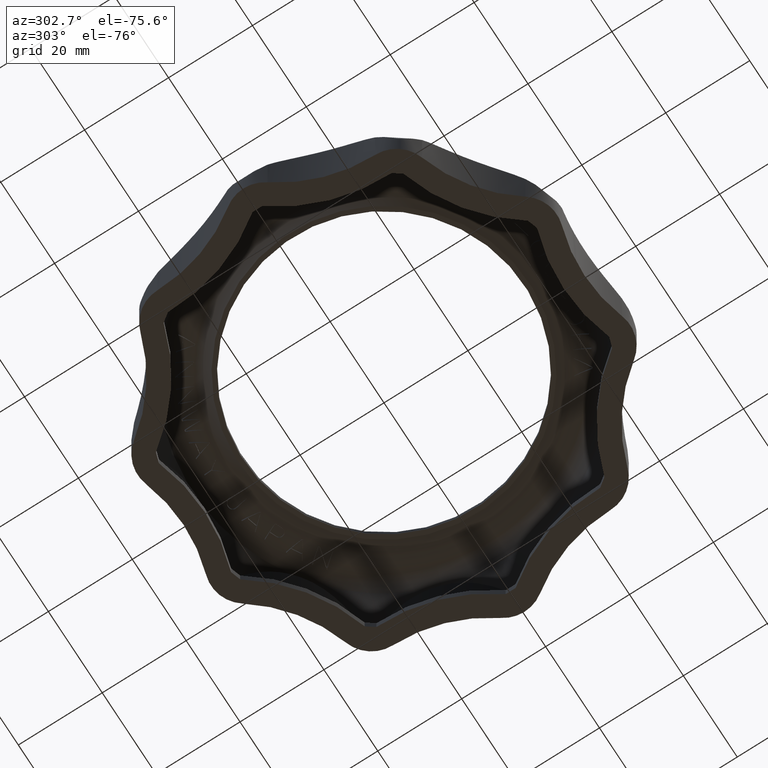
[diagram: clean part render]
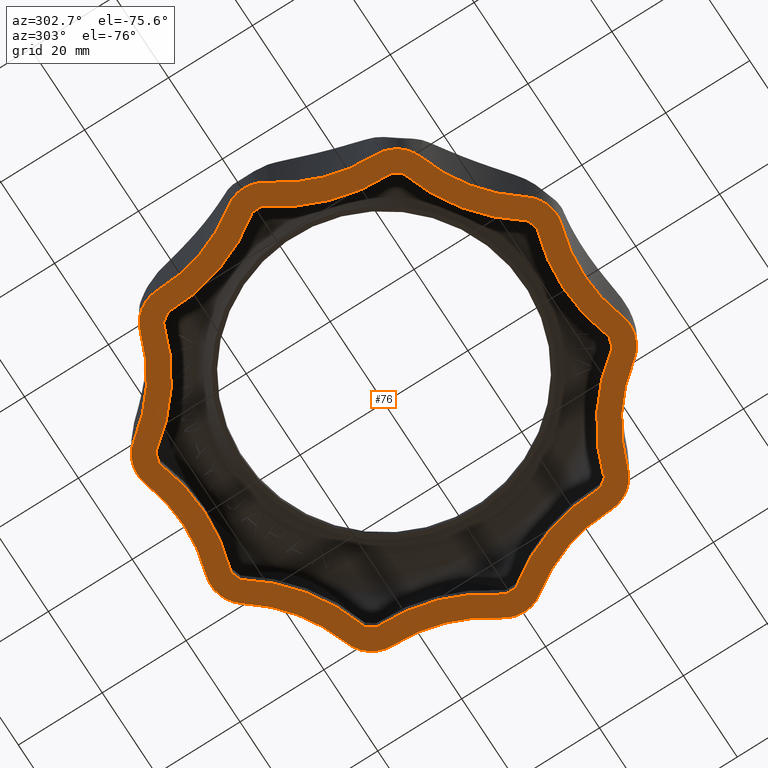
[diagram: same view with one face highlighted and labeled with its STEP entity id]
A machine part, auxiliary view. The second image highlights one B-rep face of the part: STEP entity #76.
In plain terms, the highlighted planar face has unit normal (-0, -0, 1).
Its self-contained STEP definition (entity closure, byte-faithful):
#76 = ADVANCED_FACE( '', ( #2260, #2261 ), #2262, .F. );
#2260 = FACE_BOUND( '', #6691, .T. );
#2261 = FACE_OUTER_BOUND( '', #6692, .T. );
#2262 = PLANE( '', #6693 );
#6691 = EDGE_LOOP( '', ( #11106, #11107, #11108, #11109, #11110, #11111, #11112, #11113, #11114, #11115, #11116, #11117, #11118, #11119, #11120, #11121, #11122, #11123, #11124, #11125 ) );
#6692 = EDGE_LOOP( '', ( #11126, #11127, #11128, #11129, #11130, #11131, #11132, #11133, #11134, #11135, #11136, #11137, #11138, #11139, #11140, #11141, #11142, #11143, #11144, #11145 ) );
#6693 = AXIS2_PLACEMENT_3D( '', #11146, #11147, #11148 );
#11106 = ORIENTED_EDGE( '', *, *, #30530, .T. );
#11107 = ORIENTED_EDGE( '', *, *, #30531, .T. );
#11108 = ORIENTED_EDGE( '', *, *, #30532, .T. );
#11109 = ORIENTED_EDGE( '', *, *, #30533, .T. );
#11110 = ORIENTED_EDGE( '', *, *, #30534, .T. );
#11111 = ORIENTED_EDGE( '', *, *, #30535, .T. );
#11112 = ORIENTED_EDGE( '', *, *, #30536, .T. );
#11113 = ORIENTED_EDGE( '', *, *, #30537, .T. );
#11114 = ORIENTED_EDGE( '', *, *, #30538, .T. );
#11115 = ORIENTED_EDGE( '', *, *, #30539, .T. );
#11116 = ORIENTED_EDGE( '', *, *, #30540, .T. );
#11117 = ORIENTED_EDGE( '', *, *, #30541, .T. );
#11118 = ORIENTED_EDGE( '', *, *, #30542, .T. );
#11119 = ORIENTED_EDGE( '', *, *, #30543, .T. );
#11120 = ORIENTED_EDGE( '', *, *, #30544, .T. );
#11121 = ORIENTED_EDGE( '', *, *, #30545, .T. );
#11122 = ORIENTED_EDGE( '', *, *, #30546, .T. );
#11123 = ORIENTED_EDGE( '', *, *, #30547, .T. );
#11124 = ORIENTED_EDGE( '', *, *, #30548, .T. );
#11125 = ORIENTED_EDGE( '', *, *, #30549, .T. );
#11126 = ORIENTED_EDGE( '', *, *, #30550, .F. );
#11127 = ORIENTED_EDGE( '', *, *, #30551, .F. );
#11128 = ORIENTED_EDGE( '', *, *, #30552, .F. );
#11129 = ORIENTED_EDGE( '', *, *, #30553, .F. );
#11130 = ORIENTED_EDGE( '', *, *, #30554, .F. );
#11131 = ORIENTED_EDGE( '', *, *, #30555, .F. );
#11132 = ORIENTED_EDGE( '', *, *, #30556, .F. );
#11133 = ORIENTED_EDGE( '', *, *, #30557, .F. );
#11134 = ORIENTED_EDGE( '', *, *, #30558, .F. );
#11135 = ORIENTED_EDGE( '', *, *, #30559, .F. );
#11136 = ORIENTED_EDGE( '', *, *, #30560, .F. );
#11137 = ORIENTED_EDGE( '', *, *, #30561, .F. );
#11138 = ORIENTED_EDGE( '', *, *, #30562, .F. );
#11139 = ORIENTED_EDGE( '', *, *, #30563, .F. );
#11140 = ORIENTED_EDGE( '', *, *, #30564, .F. );
#11141 = ORIENTED_EDGE( '', *, *, #30565, .F. );
#11142 = ORIENTED_EDGE( '', *, *, #30566, .F. );
#11143 = ORIENTED_EDGE( '', *, *, #30567, .F. );
#11144 = ORIENTED_EDGE( '', *, *, #30568, .F. );
#11145 = ORIENTED_EDGE( '', *, *, #30569, .F. );
#11146 = CARTESIAN_POINT( '', ( 0.000000000000000, 0.000000000000000, -0.000203932499397846 ) );
#11147 = DIRECTION( '', ( -3.93122838974283E-017, -7.71547013724938E-017, 1.00000000000000 ) );
#11148 = DIRECTION( '', ( 0.951056516295154, 0.309016994374947, 6.12303176911189E-017 ) );
#30530 = EDGE_CURVE( '', #36993, #36994, #36995, .T. );
#30531 = EDGE_CURVE( '', #36994, #36996, #36997, .T. );
#30532 = EDGE_CURVE( '', #36996, #36998, #36999, .T. );
#30533 = EDGE_CURVE( '', #36998, #37000, #37001, .T. );
#30534 = EDGE_CURVE( '', #37000, #37002, #37003, .T. );
#30535 = EDGE_CURVE( '', #37002, #37004, #37005, .T. );
#30536 = EDGE_CURVE( '', #37004, #37006, #37007, .T. );
#30537 = EDGE_CURVE( '', #37006, #37008, #37009, .T. );
#30538 = EDGE_CURVE( '', #37008, #37010, #37011, .T. );
#30539 = EDGE_CURVE( '', #37010, #37012, #37013, .T. );
#30540 = EDGE_CURVE( '', #37012, #37014, #37015, .T. );
#30541 = EDGE_CURVE( '', #37014, #37016, #37017, .T. );
#30542 = EDGE_CURVE( '', #37016, #37018, #37019, .T. );
#30543 = EDGE_CURVE( '', #37018, #37020, #37021, .T. );
#30544 = EDGE_CURVE( '', #37020, #37022, #37023, .T. );
#30545 = EDGE_CURVE( '', #37022, #37024, #37025, .T. );
#30546 = EDGE_CURVE( '', #37024, #37026, #37027, .T. );
#30547 = EDGE_CURVE( '', #37026, #37028, #37029, .T. );
#30548 = EDGE_CURVE( '', #37028, #37030, #37031, .T. );
#30549 = EDGE_CURVE( '', #37030, #36993, #37032, .T. );
#30550 = EDGE_CURVE( '', #37033, #37034, #37035, .T. );
#30551 = EDGE_CURVE( '', #37036, #37033, #37037, .F. );
#30552 = EDGE_CURVE( '', #37038, #37036, #37039, .T. );
#30553 = EDGE_CURVE( '', #37040, #37038, #37041, .F. );
#30554 = EDGE_CURVE( '', #37042, #37040, #37043, .T. );
#30555 = EDGE_CURVE( '', #37044, #37042, #37045, .F. );
#30556 = EDGE_CURVE( '', #37046, #37044, #37047, .T. );
#30557 = EDGE_CURVE( '', #37048, #37046, #37049, .F. );
#30558 = EDGE_CURVE( '', #37050, #37048, #37051, .T. );
#30559 = EDGE_CURVE( '', #37052, #37050, #37053, .F. );
#30560 = EDGE_CURVE( '', #37054, #37052, #37055, .T. );
#30561 = EDGE_CURVE( '', #37056, #37054, #37057, .F. );
#30562 = EDGE_CURVE( '', #37058, #37056, #37059, .T. );
#30563 = EDGE_CURVE( '', #37060, #37058, #37061, .F. );
#30564 = EDGE_CURVE( '', #37062, #37060, #37063, .T. );
#30565 = EDGE_CURVE( '', #37064, #37062, #37065, .F. );
#30566 = EDGE_CURVE( '', #37066, #37064, #37067, .T. );
#30567 = EDGE_CURVE( '', #37068, #37066, #37069, .F. );
#30568 = EDGE_CURVE( '', #37070, #37068, #37071, .T. );
#30569 = EDGE_CURVE( '', #37034, #37070, #37072, .F. );
#36993 = VERTEX_POINT( '', #48431 );
#36994 = VERTEX_POINT( '', #48432 );
#36995 = CIRCLE( '', #48433, 47.0000000000000 );
#36996 = VERTEX_POINT( '', #48434 );
#36997 = CIRCLE( '', #48435, 40.5000000000000 );
#36998 = VERTEX_POINT( '', #48436 );
#36999 = CIRCLE( '', #48437, 47.0000000000000 );
#37000 = VERTEX_POINT( '', #48438 );
#37001 = CIRCLE( '', #48439, 40.5000000000000 );
#37002 = VERTEX_POINT( '', #48440 );
#37003 = CIRCLE( '', #48441, 47.0000000000000 );
#37004 = VERTEX_POINT( '', #48442 );
#37005 = CIRCLE( '', #48443, 40.5000000000000 );
#37006 = VERTEX_POINT( '', #48444 );
#37007 = CIRCLE( '', #48445, 47.0000000000000 );
#37008 = VERTEX_POINT( '', #48446 );
#37009 = CIRCLE( '', #48447, 40.5000000000000 );
#37010 = VERTEX_POINT( '', #48448 );
#37011 = CIRCLE( '', #48449, 47.0000000000000 );
#37012 = VERTEX_POINT( '', #48450 );
#37013 = CIRCLE( '', #48451, 40.5000000000000 );
#37014 = VERTEX_POINT( '', #48452 );
#37015 = CIRCLE( '', #48453, 47.0000000000000 );
#37016 = VERTEX_POINT( '', #48454 );
#37017 = CIRCLE( '', #48455, 40.5000000000000 );
#37018 = VERTEX_POINT( '', #48456 );
#37019 = CIRCLE( '', #48457, 47.0000000000000 );
#37020 = VERTEX_POINT( '', #48458 );
#37021 = CIRCLE( '', #48459, 40.5000000000000 );
#37022 = VERTEX_POINT( '', #48460 );
#37023 = CIRCLE( '', #48461, 47.0000000000000 );
#37024 = VERTEX_POINT( '', #48462 );
#37025 = CIRCLE( '', #48463, 40.5000000000000 );
#37026 = VERTEX_POINT( '', #48464 );
#37027 = CIRCLE( '', #48465, 47.0000000000000 );
#37028 = VERTEX_POINT( '', #48466 );
#37029 = CIRCLE( '', #48467, 40.5000000000000 );
#37030 = VERTEX_POINT( '', #48468 );
#37031 = CIRCLE( '', #48469, 47.0000000000000 );
#37032 = CIRCLE( '', #48470, 40.5000000000000 );
#37033 = VERTEX_POINT( '', #48471 );
#37034 = VERTEX_POINT( '', #48472 );
#37035 = CIRCLE( '', #48473, 8.00000000000000 );
#37036 = VERTEX_POINT( '', #48474 );
#37037 = CIRCLE( '', #48475, 35.5000000000000 );
#37038 = VERTEX_POINT( '', #48476 );
#37039 = CIRCLE( '', #48477, 8.00000000000000 );
#37040 = VERTEX_POINT( '', #48478 );
#37041 = CIRCLE( '', #48479, 35.5000000000000 );
#37042 = VERTEX_POINT( '', #48480 );
#37043 = CIRCLE( '', #48481, 8.00000000000000 );
#37044 = VERTEX_POINT( '', #48482 );
#37045 = CIRCLE( '', #48483, 35.5000000000000 );
#37046 = VERTEX_POINT( '', #48484 );
#37047 = CIRCLE( '', #48485, 8.00000000000000 );
#37048 = VERTEX_POINT( '', #48486 );
#37049 = CIRCLE( '', #48487, 35.5000000000000 );
#37050 = VERTEX_POINT( '', #48488 );
#37051 = CIRCLE( '', #48489, 8.00000000000000 );
#37052 = VERTEX_POINT( '', #48490 );
#37053 = CIRCLE( '', #48491, 35.5000000000000 );
#37054 = VERTEX_POINT( '', #48492 );
#37055 = CIRCLE( '', #48493, 8.00000000000000 );
#37056 = VERTEX_POINT( '', #48494 );
#37057 = CIRCLE( '', #48495, 35.5000000000000 );
#37058 = VERTEX_POINT( '', #48496 );
#37059 = CIRCLE( '', #48497, 8.00000000000000 );
#37060 = VERTEX_POINT( '', #48498 );
#37061 = CIRCLE( '', #48499, 35.5000000000000 );
#37062 = VERTEX_POINT( '', #48500 );
#37063 = CIRCLE( '', #48501, 8.00000000000000 );
#37064 = VERTEX_POINT( '', #48502 );
#37065 = CIRCLE( '', #48503, 35.5000000000000 );
#37066 = VERTEX_POINT( '', #48504 );
#37067 = CIRCLE( '', #48505, 8.00000000000000 );
#37068 = VERTEX_POINT( '', #48506 );
#37069 = CIRCLE( '', #48507, 35.5000000000000 );
#37070 = VERTEX_POINT( '', #48508 );
#37071 = CIRCLE( '', #48509, 8.00000000000000 );
#37072 = CIRCLE( '', #48510, 35.5000000000000 );
#48431 = CARTESIAN_POINT( '', ( 46.9852674486370, -1.17670845158146, -0.000203932499397846 ) );
#48432 = CARTESIAN_POINT( '', ( 46.9852671397266, 1.17672078612675, -0.000203932499397846 ) );
#48433 = AXIS2_PLACEMENT_3D( '', #75305, #75306, #75307 );
#48434 = CARTESIAN_POINT( '', ( 38.7035329612347, 26.6652683526455, -0.000203932499397846 ) );
#48435 = AXIS2_PLACEMENT_3D( '', #75308, #75309, #75310 );
#48436 = CARTESIAN_POINT( '', ( 37.3202222013123, 28.5692319610567, -0.000203932499397846 ) );
#48437 = AXIS2_PLACEMENT_3D( '', #75311, #75312, #75313 );
#48438 = CARTESIAN_POINT( '', ( 15.6383666523773, 44.3220203560918, -0.000203932499397846 ) );
#48439 = AXIS2_PLACEMENT_3D( '', #75314, #75315, #75316 );
#48440 = CARTESIAN_POINT( '', ( 13.4001249328853, 45.0492691592558, -0.000203932499397846 ) );
#48441 = AXIS2_PLACEMENT_3D( '', #75317, #75318, #75319 );
#48442 = CARTESIAN_POINT( '', ( -13.4001216632463, 45.0492701318257, -0.000203932499397846 ) );
#48443 = AXIS2_PLACEMENT_3D( '', #75320, #75321, #75322 );
#48444 = CARTESIAN_POINT( '', ( -15.6383648462239, 44.3220209933662, -0.000203932499397846 ) );
#48445 = AXIS2_PLACEMENT_3D( '', #75323, #75324, #75325 );
#48446 = CARTESIAN_POINT( '', ( -37.3202204259943, 28.5692342801691, -0.000203932499397846 ) );
#48447 = AXIS2_PLACEMENT_3D( '', #75326, #75327, #75328 );
#48448 = CARTESIAN_POINT( '', ( -38.7035322612565, 26.6652693686354, -0.000203932499397846 ) );
#48449 = AXIS2_PLACEMENT_3D( '', #75329, #75330, #75331 );
#48450 = CARTESIAN_POINT( '', ( -46.9852670972062, 1.17672248393640, -0.000203932499397846 ) );
#48451 = AXIS2_PLACEMENT_3D( '', #75332, #75333, #75334 );
#48452 = CARTESIAN_POINT( '', ( -46.9852673537911, -1.17671223872732, -0.000203932499397846 ) );
#48453 = AXIS2_PLACEMENT_3D( '', #75335, #75336, #75337 );
#48454 = CARTESIAN_POINT( '', ( -38.7035396387853, -26.6652586604551, -0.000203932499397846 ) );
#48455 = AXIS2_PLACEMENT_3D( '', #75338, #75339, #75340 );
#48456 = CARTESIAN_POINT( '', ( -37.3202243678309, -28.5692291309158, -0.000203932499397846 ) );
#48457 = AXIS2_PLACEMENT_3D( '', #75341, #75342, #75343 );
#48458 = CARTESIAN_POINT( '', ( -15.6383715874125, -44.3220186148376, -0.000203932499397846 ) );
#48459 = AXIS2_PLACEMENT_3D( '', #75344, #75345, #75346 );
#48460 = CARTESIAN_POINT( '', ( -13.4001214372271, -45.0492701990561, -0.000203932499397846 ) );
#48461 = AXIS2_PLACEMENT_3D( '', #75347, #75348, #75349 );
#48462 = CARTESIAN_POINT( '', ( 13.4001250107380, -45.0492691360980, -0.000203932499397846 ) );
#48463 = AXIS2_PLACEMENT_3D( '', #75350, #75351, #75352 );
#48464 = CARTESIAN_POINT( '', ( 15.6383737512212, -44.3220178513696, -0.000203932499397846 ) );
#48465 = AXIS2_PLACEMENT_3D( '', #75353, #75354, #75355 );
#48466 = CARTESIAN_POINT( '', ( 37.3202270526830, -28.5692256236705, -0.000203932499397846 ) );
#48467 = AXIS2_PLACEMENT_3D( '', #75356, #75357, #75358 );
#48468 = CARTESIAN_POINT( '', ( 38.7035390363243, -26.6652595349028, -0.000203932499397846 ) );
#48469 = AXIS2_PLACEMENT_3D( '', #75359, #75360, #75361 );
#48470 = AXIS2_PLACEMENT_3D( '', #75362, #75363, #75364 );
#48471 = CARTESIAN_POINT( '', ( 50.5695598287548, -4.73218434635843, -0.000203932499397846 ) );
#48472 = CARTESIAN_POINT( '', ( 50.5695587571213, 4.73219743692573, -0.000203932499397846 ) );
#48473 = AXIS2_PLACEMENT_3D( '', #75365, #75366, #75367 );
#48474 = CARTESIAN_POINT( '', ( 43.6931485739447, -25.8956129149273, -0.000203932499397846 ) );
#48475 = AXIS2_PLACEMENT_3D( '', #75368, #75369, #75370 );
#48476 = CARTESIAN_POINT( '', ( 38.1301250738148, -33.5524599562359, -0.000203932499397846 ) );
#48477 = AXIS2_PLACEMENT_3D( '', #75371, #75372, #75373 );
#48478 = CARTESIAN_POINT( '', ( 20.1274387297605, -46.6321808029093, -0.000203932499397846 ) );
#48479 = AXIS2_PLACEMENT_3D( '', #75374, #75375, #75376 );
#48480 = CARTESIAN_POINT( '', ( 11.1262755807915, -49.5568367725046, -0.000203932499397846 ) );
#48481 = AXIS2_PLACEMENT_3D( '', #75377, #75378, #75379 );
#48482 = CARTESIAN_POINT( '', ( -11.1262723263366, -49.5568378784047, -0.000203932499397846 ) );
#48483 = AXIS2_PLACEMENT_3D( '', #75380, #75381, #75382 );
#48484 = CARTESIAN_POINT( '', ( -20.1274358767528, -46.6321826495560, -0.000203932499397846 ) );
#48485 = AXIS2_PLACEMENT_3D( '', #75383, #75384, #75385 );
#48486 = CARTESIAN_POINT( '', ( -38.1301248192497, -33.5524626511502, -0.000203932499397846 ) );
#48487 = AXIS2_PLACEMENT_3D( '', #75386, #75387, #75388 );
#48488 = CARTESIAN_POINT( '', ( -43.6931492589097, -25.8956153771350, -0.000203932499397846 ) );
#48489 = AXIS2_PLACEMENT_3D( '', #75389, #75390, #75391 );
#48490 = CARTESIAN_POINT( '', ( -50.5695615433324, -4.73218570728743, -0.000203932499397846 ) );
#48491 = AXIS2_PLACEMENT_3D( '', #75392, #75393, #75394 );
#48492 = CARTESIAN_POINT( '', ( -50.5695602230994, 4.73219704653359, -0.000203932499397846 ) );
#48493 = AXIS2_PLACEMENT_3D( '', #75395, #75396, #75397 );
#48494 = CARTESIAN_POINT( '', ( -43.6931420301222, 25.8956238961132, -0.000203932499397846 ) );
#48495 = AXIS2_PLACEMENT_3D( '', #75398, #75399, #75400 );
#48496 = CARTESIAN_POINT( '', ( -38.1301170915652, 33.5524688909540, -0.000203932499397846 ) );
#48497 = AXIS2_PLACEMENT_3D( '', #75401, #75402, #75403 );
#48498 = CARTESIAN_POINT( '', ( -20.1274308901839, 46.6321827641516, -0.000203932499397846 ) );
#48499 = AXIS2_PLACEMENT_3D( '', #75404, #75405, #75406 );
#48500 = CARTESIAN_POINT( '', ( -11.1262692105455, 49.5568367093532, -0.000203932499397846 ) );
#48501 = AXIS2_PLACEMENT_3D( '', #75407, #75408, #75409 );
#48502 = CARTESIAN_POINT( '', ( 11.1262721183506, 49.5568356744203, -0.000203932499397846 ) );
#48503 = AXIS2_PLACEMENT_3D( '', #75410, #75411, #75412 );
#48504 = CARTESIAN_POINT( '', ( 20.1274332901444, 46.6321812196890, -0.000203932499397846 ) );
#48505 = AXIS2_PLACEMENT_3D( '', #75413, #75414, #75415 );
#48506 = CARTESIAN_POINT( '', ( 38.1301182403996, 33.5524668026390, -0.000203932499397846 ) );
#48507 = AXIS2_PLACEMENT_3D( '', #75416, #75417, #75418 );
#48508 = CARTESIAN_POINT( '', ( 43.6931426977184, 25.8956218548304, -0.000203932499397846 ) );
#48509 = AXIS2_PLACEMENT_3D( '', #75419, #75420, #75421 );
#48510 = AXIS2_PLACEMENT_3D( '', #75422, #75423, #75424 );
#75305 = CARTESIAN_POINT( '', ( 0.000000000000000, 0.000000000000000, -0.000203932499397846 ) );
#75306 = DIRECTION( '', ( 0.000000000000000, 0.000000000000000, 1.00000000000000 ) );
#75307 = DIRECTION( '', ( 0.999686541064117, -0.0250363658557255, 0.000000000000000 ) );
#75308 = CARTESIAN_POINT( '', ( 79.1927623800716, 25.7312977595377, -0.000203932499397846 ) );
#75309 = DIRECTION( '', ( 0.000000000000000, 0.000000000000000, -1.00000000000000 ) );
#75310 = DIRECTION( '', ( -0.999734059822708, 0.0230609980357846, 0.000000000000000 ) );
#75311 = CARTESIAN_POINT( '', ( 0.000000000000000, 0.000000000000000, -0.000203932499397846 ) );
#75312 = DIRECTION( '', ( 0.000000000000000, 0.000000000000000, 1.00000000000000 ) );
#75313 = DIRECTION( '', ( 0.823479427193890, 0.567346131553237, 0.000000000000000 ) );
#75314 = CARTESIAN_POINT( '', ( 48.9438168933984, 67.3653921632483, -0.000203932499397846 ) );
#75315 = DIRECTION( '', ( 0.000000000000000, 0.000000000000000, -1.00000000000000 ) );
#75316 = DIRECTION( '', ( -0.786519374485944, -0.617565602635250, 0.000000000000000 ) );
#75317 = CARTESIAN_POINT( '', ( 0.000000000000000, 0.000000000000000, -0.000203932499397846 ) );
#75318 = DIRECTION( '', ( 0.000000000000000, 0.000000000000000, 1.00000000000000 ) );
#75319 = DIRECTION( '', ( 0.332731227881162, 0.943021701761256, 0.000000000000000 ) );
#75320 = CARTESIAN_POINT( '', ( 3.02176880739857E-006, 83.2682007608484, -0.000203932499397846 ) );
#75321 = DIRECTION( '', ( 0.000000000000000, 0.000000000000000, -1.00000000000000 ) );
#75322 = DIRECTION( '', ( -0.330867275027366, -0.943677299883793, 0.000000000000000 ) );
#75323 = CARTESIAN_POINT( '', ( 0.000000000000000, 0.000000000000000, -0.000203932499397846 ) );
#75324 = DIRECTION( '', ( 0.000000000000000, 0.000000000000000, 1.00000000000000 ) );
#75325 = DIRECTION( '', ( -0.285108947327437, 0.958495116395405, 0.000000000000000 ) );
#75326 = CARTESIAN_POINT( '', ( -48.9438136112642, 67.3653949338131, -0.000203932499397846 ) );
#75327 = DIRECTION( '', ( 0.000000000000000, 0.000000000000000, -1.00000000000000 ) );
#75328 = DIRECTION( '', ( 0.287002301258113, -0.957929892566542, 0.000000000000000 ) );
#75329 = CARTESIAN_POINT( '', ( 0.000000000000000, 0.000000000000000, -0.000203932499397846 ) );
#75330 = DIRECTION( '', ( 0.000000000000000, 0.000000000000000, 1.00000000000000 ) );
#75331 = DIRECTION( '', ( -0.794047235011468, 0.607856059088534, 0.000000000000000 ) );
#75332 = CARTESIAN_POINT( '', ( -79.1927617146672, 25.7313002743651, -0.000203932499397846 ) );
#75333 = DIRECTION( '', ( 0.000000000000000, 0.000000000000000, -1.00000000000000 ) );
#75334 = DIRECTION( '', ( 0.795246781559890, -0.606285870211930, 0.000000000000000 ) );
#75335 = CARTESIAN_POINT( '', ( 0.000000000000000, 0.000000000000000, -0.000203932499397846 ) );
#75336 = DIRECTION( '', ( 0.000000000000000, 0.000000000000000, 1.00000000000000 ) );
#75337 = DIRECTION( '', ( -0.999686534072606, 0.0250366450208709, 0.000000000000000 ) );
#75338 = CARTESIAN_POINT( '', ( -79.1927688934341, -25.7312809495373, -0.000203932499397846 ) );
#75339 = DIRECTION( '', ( 0.000000000000000, 0.000000000000000, -1.00000000000000 ) );
#75340 = DIRECTION( '', ( 0.999734054590308, -0.0230612248682475, 0.000000000000000 ) );
#75341 = CARTESIAN_POINT( '', ( 0.000000000000000, 0.000000000000000, -0.000203932499397846 ) );
#75342 = DIRECTION( '', ( 0.000000000000000, 0.000000000000000, 1.00000000000000 ) );
#75343 = DIRECTION( '', ( -0.823479555920623, -0.567345944711667, 0.000000000000000 ) );
#75344 = CARTESIAN_POINT( '', ( -48.9438235027830, -67.3653880019941, -0.000203932499397846 ) );
#75345 = DIRECTION( '', ( 0.000000000000000, 0.000000000000000, -1.00000000000000 ) );
#75346 = DIRECTION( '', ( 0.786519471492912, 0.617565479089068, 0.000000000000000 ) );
#75347 = CARTESIAN_POINT( '', ( 0.000000000000000, 0.000000000000000, -0.000203932499397846 ) );
#75348 = DIRECTION( '', ( 0.000000000000000, 0.000000000000000, 1.00000000000000 ) );
#75349 = DIRECTION( '', ( -0.332731310175329, -0.943021672724975, 0.000000000000000 ) );
#75350 = CARTESIAN_POINT( '', ( 3.30260424563633E-006, -83.2682008088594, -0.000203932499397846 ) );
#75351 = DIRECTION( '', ( 0.000000000000000, 0.000000000000000, -1.00000000000000 ) );
#75352 = DIRECTION( '', ( 0.330867192675986, 0.943677328757405, 0.000000000000000 ) );
#75353 = CARTESIAN_POINT( '', ( 0.000000000000000, 0.000000000000000, -0.000203932499397846 ) );
#75354 = DIRECTION( '', ( 0.000000000000000, 0.000000000000000, 1.00000000000000 ) );
#75355 = DIRECTION( '', ( 0.285109030971913, -0.958495091514952, 0.000000000000000 ) );
#75356 = CARTESIAN_POINT( '', ( 48.9438279251230, -67.3653839741851, -0.000203932499397846 ) );
#75357 = DIRECTION( '', ( 0.000000000000000, 0.000000000000000, -1.00000000000000 ) );
#75358 = DIRECTION( '', ( -0.287002501886473, 0.957929832456900, 0.000000000000000 ) );
#75359 = CARTESIAN_POINT( '', ( 0.000000000000000, 0.000000000000000, -0.000203932499397846 ) );
#75360 = DIRECTION( '', ( 0.000000000000000, 0.000000000000000, 1.00000000000000 ) );
#75361 = DIRECTION( '', ( 0.794047372929612, -0.607855878924915, 0.000000000000000 ) );
#75362 = CARTESIAN_POINT( '', ( 79.1927682070789, -25.7312781870703, -0.000203932499397846 ) );
#75363 = DIRECTION( '', ( 0.000000000000000, 0.000000000000000, -1.00000000000000 ) );
#75364 = DIRECTION( '', ( -0.795246950866813, 0.606285648137110, 0.000000000000000 ) );
#75365 = CARTESIAN_POINT( '', ( 44.1192593491322, 5.81492903828362E-006, -0.000203932499397846 ) );
#75366 = DIRECTION( '', ( -3.93122838974283E-017, -7.71547013724938E-017, 1.00000000000000 ) );
#75367 = DIRECTION( '', ( 0.951056516295154, 0.309016994374947, 6.12303176911189E-017 ) );
#75368 = CARTESIAN_POINT( '', ( 79.1927682070789, -25.7312781870703, -0.000203932499397846 ) );
#75369 = DIRECTION( '', ( -3.93122838974283E-017, -7.71547013724937E-017, 1.00000000000000 ) );
#75370 = DIRECTION( '', ( 0.951056516295153, 0.309016994374947, 6.12303176911189E-017 ) );
#75371 = CARTESIAN_POINT( '', ( 35.6932342904212, -25.9326460930361, -0.000203932499397846 ) );
#75372 = DIRECTION( '', ( -3.93122838974283E-017, -7.71547013724938E-017, 1.00000000000000 ) );
#75373 = DIRECTION( '', ( 0.951056516295154, 0.309016994374947, 6.12303176911189E-017 ) );
#75374 = CARTESIAN_POINT( '', ( 48.9438279251230, -67.3653839741851, -0.000203932499397846 ) );
#75375 = DIRECTION( '', ( -3.93122838974283E-017, -7.71547013724937E-017, 1.00000000000000 ) );
#75376 = DIRECTION( '', ( 0.951056516295153, 0.309016994374947, 6.12303176911189E-017 ) );
#75377 = CARTESIAN_POINT( '', ( 13.6336045448902, -41.9599096657204, -0.000203932499397846 ) );
#75378 = DIRECTION( '', ( -3.93122838974283E-017, -7.71547013724938E-017, 1.00000000000000 ) );
#75379 = DIRECTION( '', ( 0.951056516295154, 0.309016994374947, 6.12303176911189E-017 ) );
#75380 = CARTESIAN_POINT( '', ( 3.30260424563633E-006, -83.2682008088594, -0.000203932499397846 ) );
#75381 = DIRECTION( '', ( -3.93122838974283E-017, -7.71547013724937E-017, 1.00000000000000 ) );
#75382 = DIRECTION( '', ( 0.951056516295153, 0.309016994374947, 6.12303176911189E-017 ) );
#75383 = CARTESIAN_POINT( '', ( -13.6336020455346, -41.9599110208374, -0.000203932499397846 ) );
#75384 = DIRECTION( '', ( -3.93122838974283E-017, -7.71547013724938E-017, 1.00000000000000 ) );
#75385 = DIRECTION( '', ( 0.951056516295154, 0.309016994374947, 6.12303176911189E-017 ) );
#75386 = CARTESIAN_POINT( '', ( -48.9438235027830, -67.3653880019941, -0.000203932499397846 ) );
#75387 = DIRECTION( '', ( -3.93122838974283E-017, -7.71547013724937E-017, 1.00000000000000 ) );
#75388 = DIRECTION( '', ( 0.951056516295153, 0.309016994374947, 6.12303176911189E-017 ) );
#75389 = CARTESIAN_POINT( '', ( -35.6932349750732, -25.9326484875797, -0.000203932499397846 ) );
#75390 = DIRECTION( '', ( -3.93122838974283E-017, -7.71547013724938E-017, 1.00000000000000 ) );
#75391 = DIRECTION( '', ( 0.951056516295154, 0.309016994374947, 6.12303176911189E-017 ) );
#75392 = CARTESIAN_POINT( '', ( -79.1927688934341, -25.7312809495373, -0.000203932499397846 ) );
#75393 = DIRECTION( '', ( -3.93122838974283E-017, -7.71547013724937E-017, 1.00000000000000 ) );
#75394 = DIRECTION( '', ( 0.951056516295153, 0.309016994374947, 6.12303176911189E-017 ) );
#75395 = CARTESIAN_POINT( '', ( -44.1192612954222, 4.76983926661623E-006, -0.000203932499397846 ) );
#75396 = DIRECTION( '', ( -3.93122838974283E-017, -7.71547013724938E-017, 1.00000000000000 ) );
#75397 = DIRECTION( '', ( 0.951056516295154, 0.309016994374947, 6.12303176911189E-017 ) );
#75398 = CARTESIAN_POINT( '', ( -79.1927617146672, 25.7313002743651, -0.000203932499397846 ) );
#75399 = DIRECTION( '', ( -3.93122838974283E-017, -7.71547013724937E-017, 1.00000000000000 ) );
#75400 = DIRECTION( '', ( 0.951056516295153, 0.309016994374947, 6.12303176911189E-017 ) );
#75401 = CARTESIAN_POINT( '', ( -35.6932277350135, 25.9326545714366, -0.000203932499397846 ) );
#75402 = DIRECTION( '', ( -3.93122838974283E-017, -7.71547013724938E-017, 1.00000000000000 ) );
#75403 = DIRECTION( '', ( 0.951056516295154, 0.309016994374947, 6.12303176911189E-017 ) );
#75404 = CARTESIAN_POINT( '', ( -48.9438136112642, 67.3653949338131, -0.000203932499397846 ) );
#75405 = DIRECTION( '', ( -3.93122838974283E-017, -7.71547013724937E-017, 1.00000000000000 ) );
#75406 = DIRECTION( '', ( 0.951056516295153, 0.309016994374947, 6.12303176911189E-017 ) );
#75407 = CARTESIAN_POINT( '', ( -13.6335981643063, 41.9599095991575, -0.000203932499397846 ) );
#75408 = DIRECTION( '', ( -3.93122838974283E-017, -7.71547013724938E-017, 1.00000000000000 ) );
#75409 = DIRECTION( '', ( 0.951056516295154, 0.309016994374947, 6.12303176911189E-017 ) );
#75410 = CARTESIAN_POINT( '', ( 3.02176880739857E-006, 83.2682007608484, -0.000203932499397846 ) );
#75411 = DIRECTION( '', ( -3.93122838974283E-017, -7.71547013724937E-017, 1.00000000000000 ) );
#75412 = DIRECTION( '', ( 0.951056516295153, 0.309016994374947, 6.12303176911189E-017 ) );
#75413 = CARTESIAN_POINT( '', ( 13.6336003654678, 41.9599083309997, -0.000203932499397846 ) );
#75414 = DIRECTION( '', ( -3.93122838974283E-017, -7.71547013724938E-017, 1.00000000000000 ) );
#75415 = DIRECTION( '', ( 0.951056516295154, 0.309016994374947, 6.12303176911189E-017 ) );
#75416 = CARTESIAN_POINT( '', ( 48.9438168933984, 67.3653921632483, -0.000203932499397846 ) );
#75417 = DIRECTION( '', ( -3.93122838974283E-017, -7.71547013724937E-017, 1.00000000000000 ) );
#75418 = DIRECTION( '', ( 0.951056516295153, 0.309016994374947, 6.12303176911189E-017 ) );
#75419 = CARTESIAN_POINT( '', ( 35.6932284031041, 25.9326526368682, -0.000203932499397846 ) );
#75420 = DIRECTION( '', ( -3.93122838974283E-017, -7.71547013724938E-017, 1.00000000000000 ) );
#75421 = DIRECTION( '', ( 0.951056516295154, 0.309016994374947, 6.12303176911189E-017 ) );
#75422 = CARTESIAN_POINT( '', ( 79.1927623800716, 25.7312977595377, -0.000203932499397846 ) );
#75423 = DIRECTION( '', ( -3.93122838974283E-017, -7.71547013724937E-017, 1.00000000000000 ) );
#75424 = DIRECTION( '', ( 0.951056516295153, 0.309016994374947, 6.12303176911189E-017 ) );